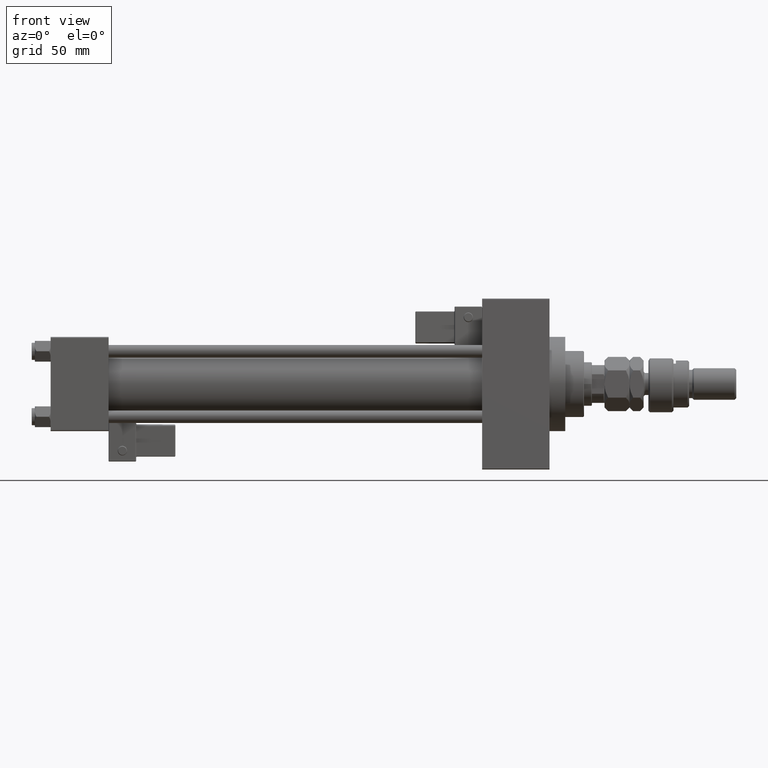
[diagram: clean part render]
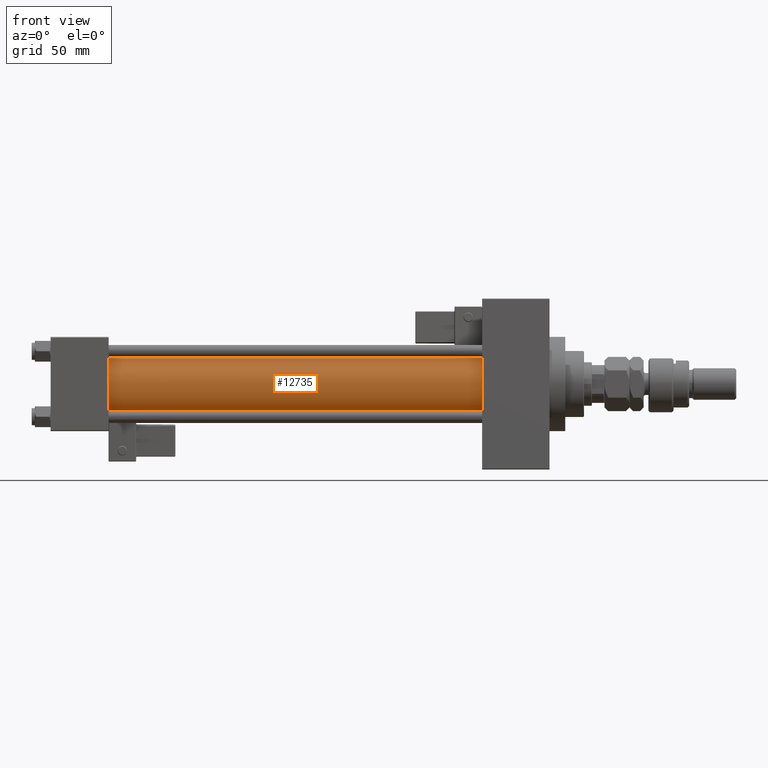
[diagram: same view with one face highlighted and labeled with its STEP entity id]
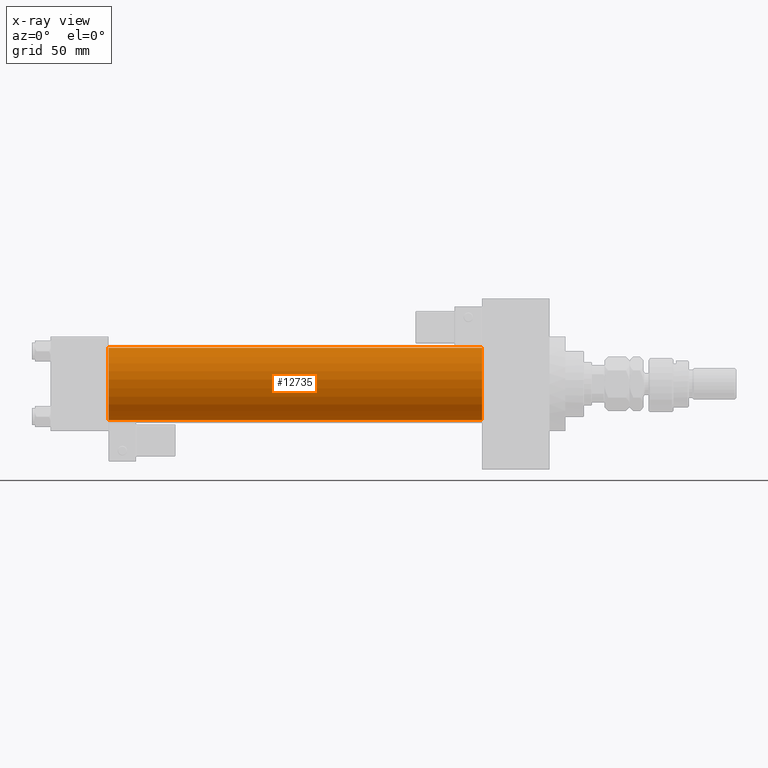
[diagram: x-ray of the same camera — body ghosted, the highlighted face saturated]
A machine part, front view. The second image highlights one B-rep face of the part: STEP entity #12735.
The next image is the same camera in x-ray: the body ghosted, the highlighted face saturated — about 0% of this face is hidden behind the body in this view.
In plain terms, the highlighted cylindrical surface (edge-blend (fillet) strip) has radius 23 mm, axis along (-1, -0, -0).
Its self-contained STEP definition (entity closure, byte-faithful):
#1018 = VERTEX_POINT ( 'NONE', #4550 ) ;
#3617 = EDGE_CURVE ( 'NONE', #34271, #1018, #6021, .T. ) ;
#4070 = FACE_OUTER_BOUND ( 'NONE', #23815, .T. ) ;
#4550 = CARTESIAN_POINT ( 'NONE',  ( 37.00000000000000711, 2.146024240737016609E-16, -23.00000000000000000 ) ) ;
#4835 = ORIENTED_EDGE ( 'NONE', *, *, #24879, .F. ) ;
#6021 = LINE ( 'NONE', #14804, #13958 ) ;
#7126 = CARTESIAN_POINT ( 'NONE',  ( 274.9999999999999432, -2.602085213965210642E-15, 23.00000000000000000 ) ) ;
#8138 = CIRCLE ( 'NONE', #14951, 23.00000000000000000 ) ;
#8754 = DIRECTION ( 'NONE',  ( 1.000000000000000000, -0.000000000000000000, 0.000000000000000000 ) ) ;
#10279 = DIRECTION ( 'NONE',  ( -1.000000000000000000, -0.000000000000000000, -0.000000000000000000 ) ) ;
#11188 = CARTESIAN_POINT ( 'NONE',  ( 274.9999999999999432, -2.602085213965210642E-15, 0.000000000000000000 ) ) ;
#11645 = LINE ( 'NONE', #48585, #49347 ) ;
#12735 = ADVANCED_FACE ( 'NONE', ( #4070 ), #40754, .T. ) ;
#13001 = ORIENTED_EDGE ( 'NONE', *, *, #30524, .T. ) ;
#13016 = DIRECTION ( 'NONE',  ( 0.000000000000000000, 0.000000000000000000, 1.000000000000000000 ) ) ;
#13958 = VECTOR ( 'NONE', #10279, 1000.000000000000000 ) ;
#14804 = CARTESIAN_POINT ( 'NONE',  ( 274.9999999999999432, 2.146024240737016609E-16, -23.00000000000000000 ) ) ;
#14951 = AXIS2_PLACEMENT_3D ( 'NONE', #33223, #8754, #13016 ) ;
#15240 = VERTEX_POINT ( 'NONE', #7126 ) ;
#18694 = EDGE_CURVE ( 'NONE', #31499, #1018, #8138, .T. ) ;
#23815 = EDGE_LOOP ( 'NONE', ( #43185, #4835, #13001, #49689 ) ) ;
#24560 = DIRECTION ( 'NONE',  ( 0.000000000000000000, 0.000000000000000000, 1.000000000000000000 ) ) ;
#24879 = EDGE_CURVE ( 'NONE', #15240, #34271, #52427, .T. ) ;
#27419 = DIRECTION ( 'NONE',  ( 1.000000000000000000, 0.000000000000000000, 0.000000000000000000 ) ) ;
#27861 = CARTESIAN_POINT ( 'NONE',  ( 274.9999999999999432, 2.146024240737016609E-16, -23.00000000000000000 ) ) ;
#29982 = AXIS2_PLACEMENT_3D ( 'NONE', #40500, #49003, #24560 ) ;
#30524 = EDGE_CURVE ( 'NONE', #15240, #31499, #11645, .T. ) ;
#31231 = AXIS2_PLACEMENT_3D ( 'NONE', #11188, #27419, #43897 ) ;
#31499 = VERTEX_POINT ( 'NONE', #48285 ) ;
#33223 = CARTESIAN_POINT ( 'NONE',  ( 37.00000000000000711, -2.602085213965210642E-15, 0.000000000000000000 ) ) ;
#34271 = VERTEX_POINT ( 'NONE', #27861 ) ;
#36364 = DIRECTION ( 'NONE',  ( -1.000000000000000000, -0.000000000000000000, -0.000000000000000000 ) ) ;
#40500 = CARTESIAN_POINT ( 'NONE',  ( 274.9999999999999432, -2.602085213965210642E-15, 0.000000000000000000 ) ) ;
#40754 = CYLINDRICAL_SURFACE ( 'NONE', #29982, 23.00000000000000000 ) ;
#43185 = ORIENTED_EDGE ( 'NONE', *, *, #3617, .F. ) ;
#43897 = DIRECTION ( 'NONE',  ( 0.000000000000000000, 0.000000000000000000, -1.000000000000000000 ) ) ;
#48285 = CARTESIAN_POINT ( 'NONE',  ( 37.00000000000000711, -2.602085213965210642E-15, 23.00000000000000000 ) ) ;
#48585 = CARTESIAN_POINT ( 'NONE',  ( 274.9999999999999432, -2.602085213965210642E-15, 23.00000000000000000 ) ) ;
#49003 = DIRECTION ( 'NONE',  ( -1.000000000000000000, -0.000000000000000000, -0.000000000000000000 ) ) ;
#49347 = VECTOR ( 'NONE', #36364, 1000.000000000000000 ) ;
#49689 = ORIENTED_EDGE ( 'NONE', *, *, #18694, .T. ) ;
#52427 = CIRCLE ( 'NONE', #31231, 23.00000000000000000 ) ;